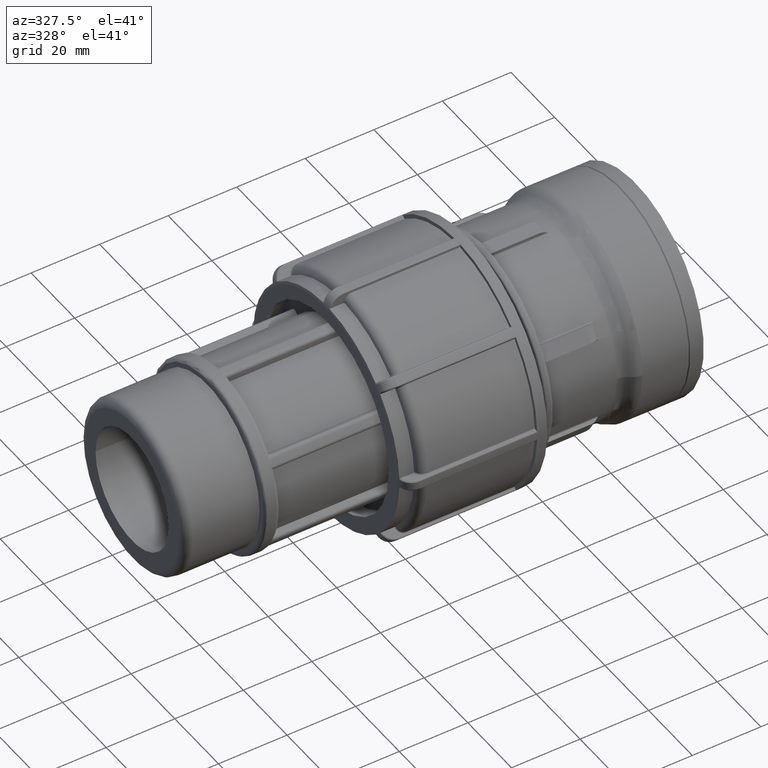
[diagram: clean part render]
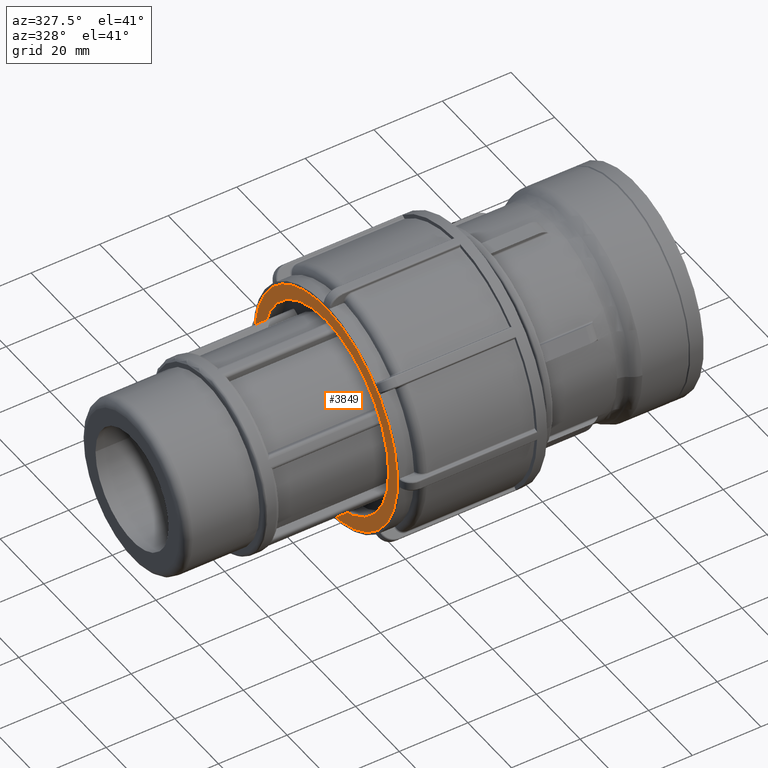
[diagram: same view with one face highlighted and labeled with its STEP entity id]
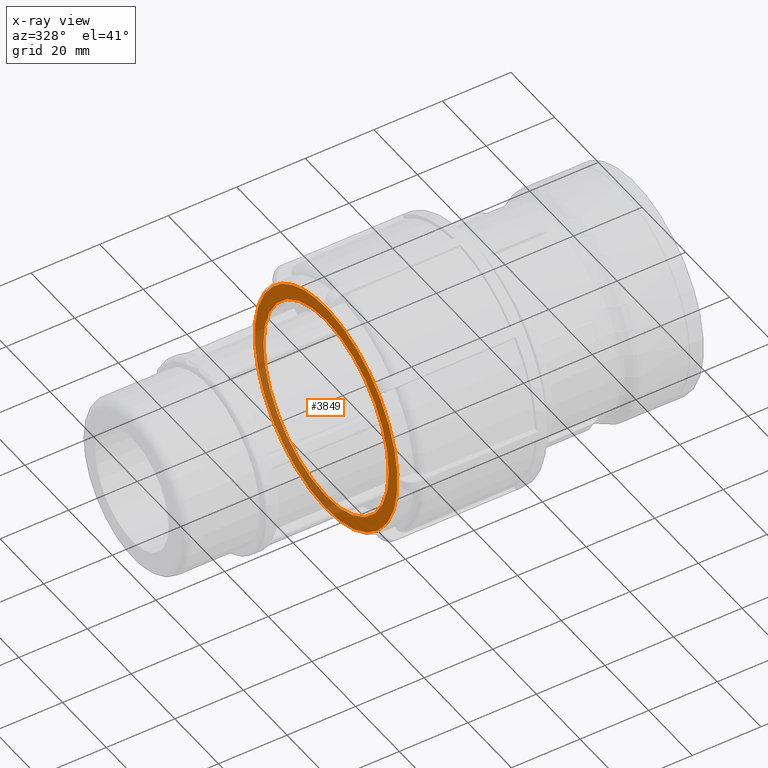
[diagram: x-ray of the same camera — body ghosted, the highlighted face saturated]
A machine part, auxiliary view. The second image highlights one B-rep face of the part: STEP entity #3849.
The next image is the same camera in x-ray: the body ghosted, the highlighted face saturated — about 30% of this face is hidden behind the body in this view.
In plain terms, the highlighted planar face has unit normal (-1, 0, 0).
Its self-contained STEP definition (entity closure, byte-faithful):
#69=FACE_BOUND('',#1117,.T.);
#144=PLANE('',#4239);
#877=FACE_OUTER_BOUND('',#1116,.T.);
#1116=EDGE_LOOP('',(#3579));
#1117=EDGE_LOOP('',(#3580));
#1398=CIRCLE('',#4049,32.7);
#1496=CIRCLE('',#4240,28.6818);
#1731=VERTEX_POINT('',#6413);
#1885=VERTEX_POINT('',#8334);
#2190=EDGE_CURVE('',#1731,#1731,#1398,.T.);
#2460=EDGE_CURVE('',#1885,#1885,#1496,.T.);
#3579=ORIENTED_EDGE('',*,*,#2190,.F.);
#3580=ORIENTED_EDGE('',*,*,#2460,.T.);
#3849=ADVANCED_FACE('',(#877,#69),#144,.T.);
#4049=AXIS2_PLACEMENT_3D('',#6414,#4751,#4752);
#4239=AXIS2_PLACEMENT_3D('',#8333,#5225,#5226);
#4240=AXIS2_PLACEMENT_3D('',#8335,#5227,#5228);
#4751=DIRECTION('center_axis',(1.,0.,0.));
#4752=DIRECTION('ref_axis',(0.,4.8919202022546E-16,1.));
#5225=DIRECTION('center_axis',(-1.,0.,0.));
#5226=DIRECTION('ref_axis',(0.,0.,1.));
#5227=DIRECTION('center_axis',(1.,0.,0.));
#5228=DIRECTION('ref_axis',(0.,0.,-1.));
#6413=CARTESIAN_POINT('',(-90.405,24.1371125632937,22.06104705373));
#6414=CARTESIAN_POINT('Origin',(-90.405,0.,0.));
#8333=CARTESIAN_POINT('Origin',(-90.405,33.4621,0.));
#8334=CARTESIAN_POINT('',(-90.405,28.6818,0.));
#8335=CARTESIAN_POINT('Origin',(-90.405,0.,0.));